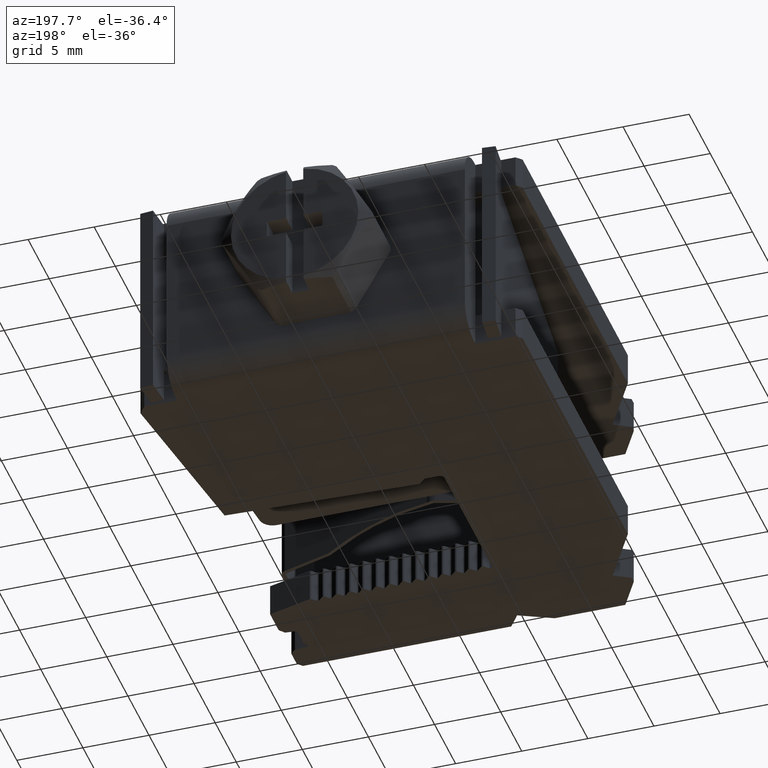
[diagram: clean part render]
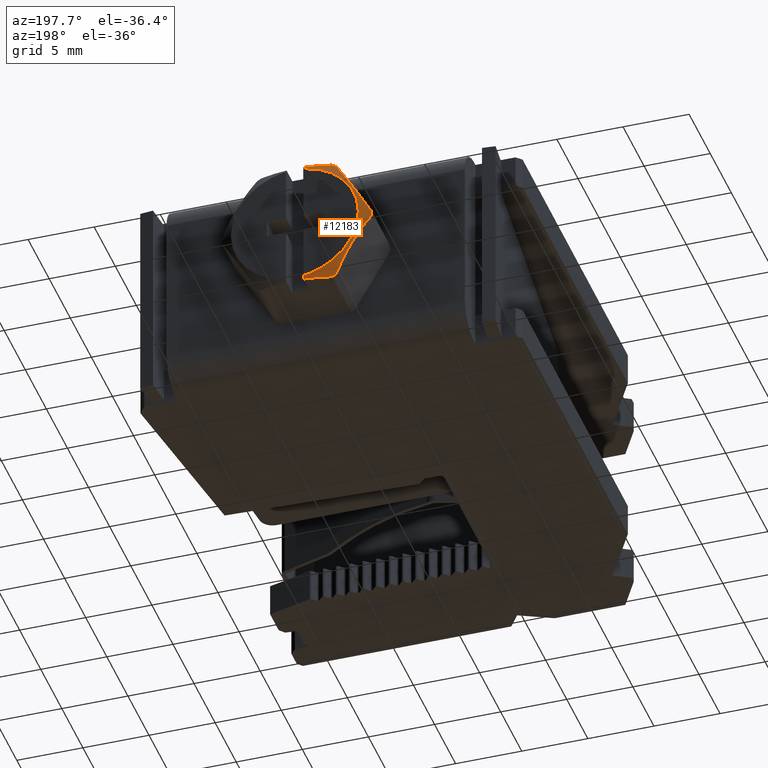
[diagram: same view with one face highlighted and labeled with its STEP entity id]
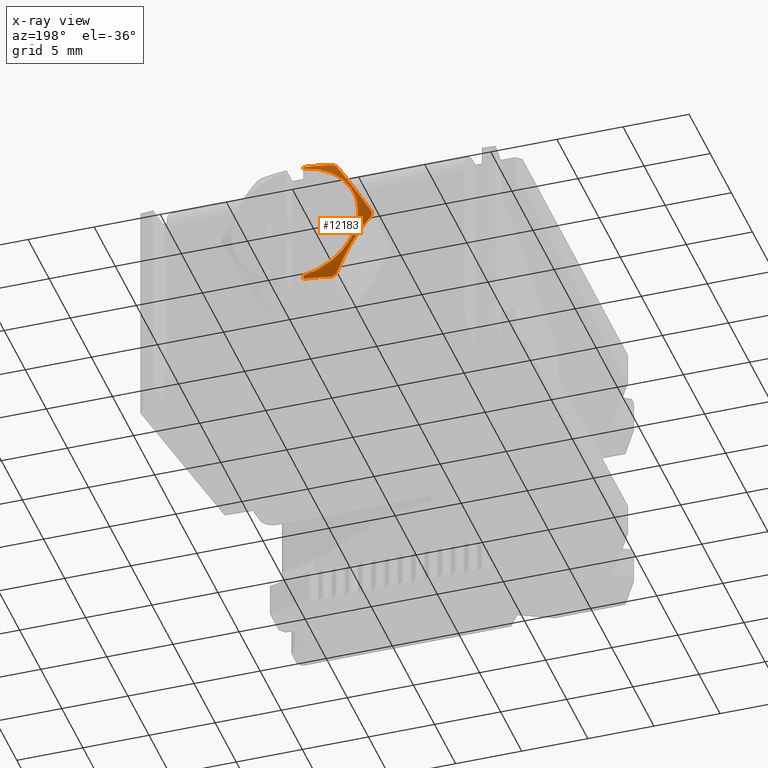
[diagram: x-ray of the same camera — body ghosted, the highlighted face saturated]
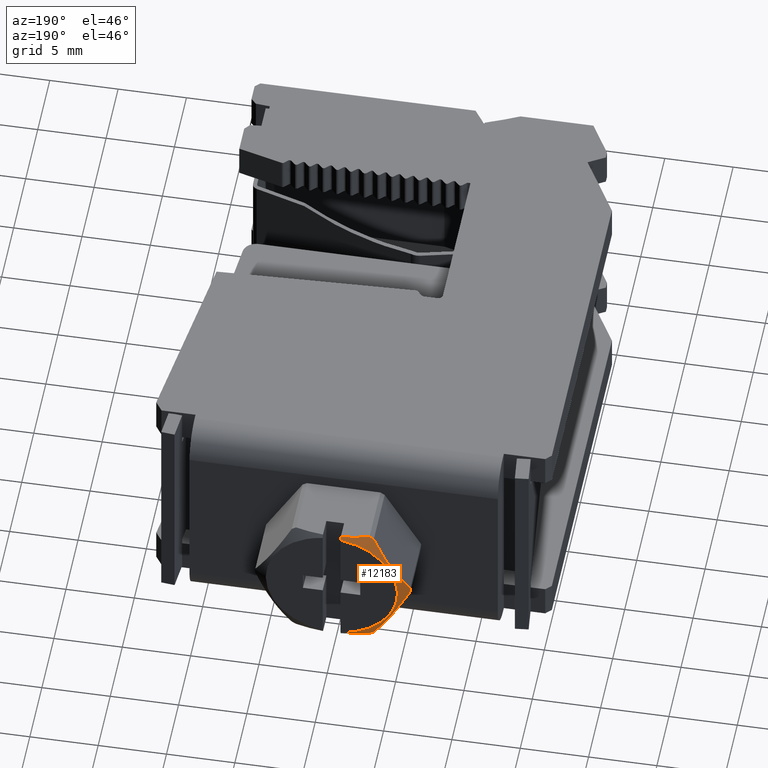
[diagram: same view with one face highlighted and labeled with its STEP entity id]
A machine part, auxiliary view. The second image highlights one B-rep face of the part: STEP entity #12183.
The next image is the same camera in x-ray: the body ghosted, the highlighted face saturated — about 0% of this face is hidden behind the body in this view.
A second angle (auxiliary view) of the same face is appended — the face is thin or edge-on in the first view.
In plain terms, the highlighted conical surface has half-angle 60 deg.
Its self-contained STEP definition (entity closure, byte-faithful):
#143 = DIRECTION ( 'NONE',  ( 0.0000000000000000000, -1.000000000000000000, 0.0000000000000000000 ) ) ;
#146 = FACE_OUTER_BOUND ( 'NONE', #9075, .T. ) ;
#162 = DIRECTION ( 'NONE',  ( 0.0000000000000000000, 0.0000000000000000000, -1.000000000000000000 ) ) ;
#178 = CARTESIAN_POINT ( 'NONE',  ( 9.746278230129222600, 39.13180984869768500, 4.000000000000000000 ) ) ;
#501 = CARTESIAN_POINT ( 'NONE',  ( 6.849237577903238600, 39.14274310909992500, 8.866697114455819300 ) ) ;
#525 = CARTESIAN_POINT ( 'NONE',  ( 6.744056830341164300, 39.14318877548951300, 8.799999999993433500 ) ) ;
#527 = CARTESIAN_POINT ( 'NONE',  ( 4.072775538232403600, 39.13678162866168000, 4.057737674253047500 ) ) ;
#529 = CARTESIAN_POINT ( 'NONE',  ( 4.072775427689189900, 39.13477120992310900, 4.173204703424361600 ) ) ;
#533 = CARTESIAN_POINT ( 'NONE',  ( 6.954243281375807100, 39.13993726534955900, 8.933267976910714800 ) ) ;
#537 = CARTESIAN_POINT ( 'NONE',  ( 7.059526537706262600, 39.13477121946350200, 8.999999907615466200 ) ) ;
#546 = CARTESIAN_POINT ( 'NONE',  ( 4.072775538232403600, 39.13678163197576500, 3.942267765201685300 ) ) ;
#557 = CARTESIAN_POINT ( 'NONE',  ( 4.072775538236292000, 39.13477123177968100, 3.826794919244444600 ) ) ;
#3228 = CARTESIAN_POINT ( 'NONE',  ( 9.096278230135011400, 39.50085342542391200, 9.000000000001106700 ) ) ;
#3229 = CARTESIAN_POINT ( 'NONE',  ( 9.096276957700665000, 39.54430357588582000, 8.924108701744348300 ) ) ;
#3234 = CARTESIAN_POINT ( 'NONE',  ( 9.096276899311421400, 39.58679690438161500, 8.849860033558790900 ) ) ;
#3240 = CARTESIAN_POINT ( 'NONE',  ( 9.096278230134878100, 39.62833341091160100, 8.777253995631609100 ) ) ;
#3271 = CARTESIAN_POINT ( 'NONE',  ( 9.096278230131250800, 39.62833341091469200, -0.7772539956258219800 ) ) ;
#3278 = CARTESIAN_POINT ( 'NONE',  ( 9.096276957697027000, 39.54430357588854900, -0.9241087017391073100 ) ) ;
#3289 = CARTESIAN_POINT ( 'NONE',  ( 9.096276899307786900, 39.58679690438701500, -0.8498600335488742900 ) ) ;
#3291 = CARTESIAN_POINT ( 'NONE',  ( 9.096278230131364500, 39.50085342542346500, -1.000000000001165500 ) ) ;
#3784 = CARTESIAN_POINT ( 'NONE',  ( 5.434768558482908000, 39.62833341091709400, 1.766571099550675400 ) ) ;
#3785 = CARTESIAN_POINT ( 'NONE',  ( 5.434768558484590200, 39.62833341091709400, 6.233428900452572900 ) ) ;
#3786 = CARTESIAN_POINT ( 'NONE',  ( 5.029602737290565200, 39.62833341091709400, 5.153383109516179100 ) ) ;
#3789 = CARTESIAN_POINT ( 'NONE',  ( 5.735227353471103100, 39.62833341091709400, 1.263434421227560600 ) ) ;
#3794 = CARTESIAN_POINT ( 'NONE',  ( 6.493930177603166600, 39.62833341091709400, 0.3945107894639369200 ) ) ;
#3795 = CARTESIAN_POINT ( 'NONE',  ( 4.925007055556249300, 39.62833341091709400, 3.423229193445335800 ) ) ;
#3798 = CARTESIAN_POINT ( 'NONE',  ( 8.524773218192409600, 39.62833341091709400, -0.6994942076648237300 ) ) ;
#3803 = CARTESIAN_POINT ( 'NONE',  ( 7.967526770562229500, 39.62833341091708700, 8.518115043593983400 ) ) ;
#3804 = CARTESIAN_POINT ( 'NONE',  ( 4.925007055556680900, 39.62833341091709400, 4.576770806558296400 ) ) ;
#3806 = CARTESIAN_POINT ( 'NONE',  ( 9.096278230131250800, 39.62833341091469200, -0.7772539956258219800 ) ) ;
#3807 = CARTESIAN_POINT ( 'NONE',  ( 9.096278230134878100, 39.62833341091160100, 8.777253995631609100 ) ) ;
#3811 = CARTESIAN_POINT ( 'NONE',  ( 8.524773218195949900, 39.62833341091708700, 8.699494207665743800 ) ) ;
#3815 = CARTESIAN_POINT ( 'NONE',  ( 5.029602737289696500, 39.62833341091709400, 2.846616890487376300 ) ) ;
#3816 = CARTESIAN_POINT ( 'NONE',  ( 5.735227353473165500, 39.62833341091709400, 6.736565578775462800 ) ) ;
#3818 = CARTESIAN_POINT ( 'NONE',  ( 6.493930177605884400, 39.62833341091709400, 7.605489210538515000 ) ) ;
#3821 = CARTESIAN_POINT ( 'NONE',  ( 7.967526770558824200, 39.62833341091709400, -0.5181150435926443800 ) ) ;
#3828 = CARTESIAN_POINT ( 'NONE',  ( 6.951965706031033100, 39.62833341091708000, 7.971037373247702000 ) ) ;
#3831 = CARTESIAN_POINT ( 'NONE',  ( 6.951965706028040900, 39.62833341091709400, 0.02896262675440540400 ) ) ;
#4133 = EDGE_CURVE ( 'NONE', #9572, #9446, #12299, .T. ) ;
#4134 = EDGE_CURVE ( 'NONE', #9503, #9504, #12294, .T. ) ;
#4251 = EDGE_CURVE ( 'NONE', #9446, #9503, #12348, .T. ) ;
#4377 = EDGE_CURVE ( 'NONE', #9584, #9612, #12355, .T. ) ;
#4398 = EDGE_CURVE ( 'NONE', #9602, #9504, #12382, .T. ) ;
#4402 = EDGE_CURVE ( 'NONE', #9602, #9582, #12387, .T. ) ;
#4414 = EDGE_CURVE ( 'NONE', #9572, #9549, #12393, .T. ) ;
#4418 = EDGE_CURVE ( 'NONE', #9658, #9582, #12397, .T. ) ;
#4637 = CARTESIAN_POINT ( 'NONE',  ( 5.133887817702078100, 39.51167031742014800, 6.011105461334392600 ) ) ;
#4643 = CARTESIAN_POINT ( 'NONE',  ( 6.508262924041401800, 39.27086914379253800, 8.391592974171983200 ) ) ;
#4644 = CARTESIAN_POINT ( 'NONE',  ( 5.438143555179614500, 39.52506082037064800, 6.538091857139821900 ) ) ;
#4645 = CARTESIAN_POINT ( 'NONE',  ( 4.742133772609517600, 39.42207676770355800, 5.332567551163448300 ) ) ;
#4647 = CARTESIAN_POINT ( 'NONE',  ( 5.782469703177073800, 39.49776644304054000, 7.134482239845900700 ) ) ;
#4650 = CARTESIAN_POINT ( 'NONE',  ( 4.072775427689189900, 39.13477120992310900, 4.173204703424361600 ) ) ;
#4653 = CARTESIAN_POINT ( 'NONE',  ( 5.425923532071613500, 39.52516459546256300, 6.516926156247098600 ) ) ;
#4656 = CARTESIAN_POINT ( 'NONE',  ( 4.304013800296496900, 39.26111994446708300, 4.573721499306620900 ) ) ;
#4659 = CARTESIAN_POINT ( 'NONE',  ( 4.785747378936652500, 39.43484440506395600, 5.408108533223351200 ) ) ;
#4661 = CARTESIAN_POINT ( 'NONE',  ( 4.835827406649587900, 39.44866058600396700, 5.494849685666613600 ) ) ;
#4662 = CARTESIAN_POINT ( 'NONE',  ( 4.524939394381446400, 39.35622327293827300, 4.956375852954090900 ) ) ;
#4663 = CARTESIAN_POINT ( 'NONE',  ( 5.301442618046222000, 39.52494747340209400, 6.301318888582504700 ) ) ;
#4665 = CARTESIAN_POINT ( 'NONE',  ( 4.764247472847051400, 39.42861878638214500, 5.370869603518199800 ) ) ;
#4666 = CARTESIAN_POINT ( 'NONE',  ( 4.749905971660700400, 39.42440072986562400, 5.346029394806631500 ) ) ;
#4667 = CARTESIAN_POINT ( 'NONE',  ( 6.744056830341164300, 39.14318877548951300, 8.799999999993433500 ) ) ;
#4672 = CARTESIAN_POINT ( 'NONE',  ( 6.164921930450930200, 39.41437338192808700, 7.796908928952104700 ) ) ;
#4675 = CARTESIAN_POINT ( 'NONE',  ( 4.935641782757584500, 39.47345189728056200, 5.667733256411450400 ) ) ;
#4676 = CARTESIAN_POINT ( 'NONE',  ( 5.464275649284104500, 39.52460604249656500, 6.583353971836969800 ) ) ;
#4678 = CARTESIAN_POINT ( 'NONE',  ( 5.595771655852233900, 39.51845583608531600, 6.811111736205388600 ) ) ;
#4680 = CARTESIAN_POINT ( 'NONE',  ( 5.503554648767841500, 39.52354874822987100, 6.651387194613272800 ) ) ;
#4741 = CARTESIAN_POINT ( 'NONE',  ( 7.059526884184058400, 39.13477123177857900, -0.9999999999960292900 ) ) ;
#4744 = CARTESIAN_POINT ( 'NONE',  ( 6.849240193257279500, 39.14274978069282400, -0.8666850991884644800 ) ) ;
#4746 = CARTESIAN_POINT ( 'NONE',  ( 7.059526884184058400, 39.13477123177857900, -0.9999999999960292900 ) ) ;
#4748 = CARTESIAN_POINT ( 'NONE',  ( 7.778510023503574000, 39.33119708046599100, -1.000000000000004400 ) ) ;
#4760 = CARTESIAN_POINT ( 'NONE',  ( 8.457427138820154500, 39.45322447834600900, -1.000000000000004400 ) ) ;
#4763 = CARTESIAN_POINT ( 'NONE',  ( 9.096278230131364500, 39.50085342542346500, -1.000000000001165500 ) ) ;
#4767 = CARTESIAN_POINT ( 'NONE',  ( 6.954244949649192300, 39.13994393377448900, -0.9332557713946450000 ) ) ;
#4773 = CARTESIAN_POINT ( 'NONE',  ( 6.744056969648540600, 39.14318877489726100, -0.8000000883315301300 ) ) ;
#4789 = CARTESIAN_POINT ( 'NONE',  ( 4.072775538236292000, 39.13477123177968100, 3.826794919244444600 ) ) ;
#4820 = CARTESIAN_POINT ( 'NONE',  ( 9.096278230135011400, 39.50085342542391200, 9.000000000001106700 ) ) ;
#4830 = CARTESIAN_POINT ( 'NONE',  ( 8.457427306673377400, 39.45322449086047800, 9.000000000000007100 ) ) ;
#4832 = CARTESIAN_POINT ( 'NONE',  ( 7.778510072658193100, 39.33119709287312600, 9.000000000000007100 ) ) ;
#4833 = CARTESIAN_POINT ( 'NONE',  ( 7.059526537706262600, 39.13477121946350200, 8.999999907615466200 ) ) ;
#4842 = CARTESIAN_POINT ( 'NONE',  ( 5.980656110056068900, 39.45273827025829400, 0.5222488340737467800 ) ) ;
#4844 = CARTESIAN_POINT ( 'NONE',  ( 5.312857059190598400, 39.52284915158973900, 1.678910719419018700 ) ) ;
#4845 = CARTESIAN_POINT ( 'NONE',  ( 6.030717751413481800, 39.43926311988083500, 0.4355395277324191600 ) ) ;
#4846 = CARTESIAN_POINT ( 'NONE',  ( 5.352071034191313400, 39.52419284456093600, 1.610990122351043000 ) ) ;
#4847 = CARTESIAN_POINT ( 'NONE',  ( 4.652154612497603200, 39.40920096760467600, 2.823280925776358700 ) ) ;
#4848 = CARTESIAN_POINT ( 'NONE',  ( 5.390317576279782600, 39.52503262421186000, 1.544745168239997300 ) ) ;
#4852 = CARTESIAN_POINT ( 'NONE',  ( 6.066543043851622100, 39.42906228267300200, 0.3734883010335486900 ) ) ;
#4856 = CARTESIAN_POINT ( 'NONE',  ( 5.514934324205203400, 39.52573882025468100, 1.328902629359162800 ) ) ;
#4858 = CARTESIAN_POINT ( 'NONE',  ( 6.291734655668453700, 39.36230234368697700, -0.01655501207153151800 ) ) ;
#4862 = CARTESIAN_POINT ( 'NONE',  ( 4.308750127572420900, 39.26370680520657400, 3.418074941213800500 ) ) ;
#4868 = CARTESIAN_POINT ( 'NONE',  ( 5.682602884471238600, 39.51367569489471500, 1.038492164146461900 ) ) ;
#4869 = CARTESIAN_POINT ( 'NONE',  ( 6.074300803520325000, 39.42679400131949300, 0.3600514671344448000 ) ) ;
#4876 = CARTESIAN_POINT ( 'NONE',  ( 5.034317729849325600, 39.49510306103358200, 2.161354989744267700 ) ) ;
#4878 = CARTESIAN_POINT ( 'NONE',  ( 6.744056969648540600, 39.14318877489726100, -0.8000000883315301300 ) ) ;
#4880 = CARTESIAN_POINT ( 'NONE',  ( 6.052208199075224100, 39.43318325730638200, 0.3983169805048833400 ) ) ;
#4886 = CARTESIAN_POINT ( 'NONE',  ( 5.880863773421197000, 39.47684378849484700, 0.6950942313313662700 ) ) ;
#4888 = CARTESIAN_POINT ( 'NONE',  ( 5.220780426426604700, 39.51709383373918200, 1.838392125556121100 ) ) ;
#4889 = CARTESIAN_POINT ( 'NONE',  ( 6.512790363072860500, 39.26841869929596400, -0.3994347285990559900 ) ) ;
#4895 = CARTESIAN_POINT ( 'NONE',  ( 5.378158697738237800, 39.52483911280354800, 1.565804963637010200 ) ) ;
#8594 = CARTESIAN_POINT ( 'NONE',  ( 9.096278230134878100, 39.62833341091160100, 8.777253995631609100 ) ) ;
#8618 = CARTESIAN_POINT ( 'NONE',  ( 7.059526537706262600, 39.13477121946350200, 8.999999907615466200 ) ) ;
#8624 = CARTESIAN_POINT ( 'NONE',  ( 9.096278230131364500, 39.50085342542346500, -1.000000000001165500 ) ) ;
#8630 = CARTESIAN_POINT ( 'NONE',  ( 9.096278230131250800, 39.62833341091469200, -0.7772539956258219800 ) ) ;
#8663 = CARTESIAN_POINT ( 'NONE',  ( 9.096278230135011400, 39.50085342542391200, 9.000000000001106700 ) ) ;
#8680 = CARTESIAN_POINT ( 'NONE',  ( 7.059526884184058400, 39.13477123177857900, -0.9999999999960292900 ) ) ;
#8694 = CARTESIAN_POINT ( 'NONE',  ( 6.744056830341164300, 39.14318877548951300, 8.799999999993433500 ) ) ;
#8708 = CARTESIAN_POINT ( 'NONE',  ( 4.072775427689189900, 39.13477120992310900, 4.173204703424361600 ) ) ;
#8713 = CARTESIAN_POINT ( 'NONE',  ( 6.744056969648540600, 39.14318877489726100, -0.8000000883315301300 ) ) ;
#8725 = CARTESIAN_POINT ( 'NONE',  ( 4.072775538236292000, 39.13477123177968100, 3.826794919244444600 ) ) ;
#9075 = EDGE_LOOP ( 'NONE', ( #9811, #9844, #9805, #9853, #9856, #9814, #9806, #11361, #9865, #9823 ) ) ;
#9446 = VERTEX_POINT ( 'NONE', #8594 ) ;
#9503 = VERTEX_POINT ( 'NONE', #8630 ) ;
#9504 = VERTEX_POINT ( 'NONE', #8624 ) ;
#9549 = VERTEX_POINT ( 'NONE', #8618 ) ;
#9572 = VERTEX_POINT ( 'NONE', #8663 ) ;
#9582 = VERTEX_POINT ( 'NONE', #8713 ) ;
#9584 = VERTEX_POINT ( 'NONE', #8694 ) ;
#9602 = VERTEX_POINT ( 'NONE', #8680 ) ;
#9612 = VERTEX_POINT ( 'NONE', #8708 ) ;
#9658 = VERTEX_POINT ( 'NONE', #8725 ) ;
#9805 = ORIENTED_EDGE ( 'NONE', *, *, #4414, .F. ) ;
#9806 = ORIENTED_EDGE ( 'NONE', *, *, #4398, .F. ) ;
#9811 = ORIENTED_EDGE ( 'NONE', *, *, #4377, .F. ) ;
#9814 = ORIENTED_EDGE ( 'NONE', *, *, #4134, .T. ) ;
#9823 = ORIENTED_EDGE ( 'NONE', *, *, #12280, .F. ) ;
#9844 = ORIENTED_EDGE ( 'NONE', *, *, #12272, .T. ) ;
#9853 = ORIENTED_EDGE ( 'NONE', *, *, #4133, .T. ) ;
#9856 = ORIENTED_EDGE ( 'NONE', *, *, #4251, .T. ) ;
#9865 = ORIENTED_EDGE ( 'NONE', *, *, #4418, .F. ) ;
#11361 = ORIENTED_EDGE ( 'NONE', *, *, #4402, .T. ) ;
#12183 = ADVANCED_FACE ( 'NONE', ( #146 ), #12727, .T. ) ;
#12272 = EDGE_CURVE ( 'NONE', #9584, #9549, #12623, .T. ) ;
#12280 = EDGE_CURVE ( 'NONE', #9612, #9658, #12626, .T. ) ;
#12294 = B_SPLINE_CURVE_WITH_KNOTS ( 'NONE', 3,
 ( #3271, #3289, #3278, #3291 ),
 .UNSPECIFIED., .F., .F.,
 ( 4, 4 ),
 ( 0.0000000000000000000, 1.000000000000000000 ),
 .UNSPECIFIED. ) ;
#12299 = B_SPLINE_CURVE_WITH_KNOTS ( 'NONE', 3,
 ( #3228, #3229, #3234, #3240 ),
 .UNSPECIFIED., .F., .F.,
 ( 4, 4 ),
 ( 0.0000000000000000000, 1.000000000000000000 ),
 .UNSPECIFIED. ) ;
#12348 = B_SPLINE_CURVE_WITH_KNOTS ( 'NONE', 3,
 ( #3807, #3811, #3803, #3828, #3818, #3816, #3785, #3786, #3804, #3795, #3815, #3784, #3789, #3794, #3831, #3821, #3798, #3806 ),
 .UNSPECIFIED., .F., .F.,
 ( 4, 2, 2, 2, 2, 2, 2, 2, 4 ),
 ( 0.0000000000000000000, 0.1250000000000000000, 0.2500000000000000000, 0.3750000000000000000, 0.5000000000000000000, 0.6250000000000000000, 0.7500000000000000000, 0.8750000000000000000, 1.000000000000000000 ),
 .UNSPECIFIED. ) ;
#12355 = B_SPLINE_CURVE_WITH_KNOTS ( 'NONE', 3,
 ( #4667, #4643, #4672, #4647, #4678, #4680, #4676, #4644, #4653, #4663, #4637, #4675, #4661, #4659, #4665, #4666, #4645, #4662, #4656, #4650 ),
 .UNSPECIFIED., .F., .F.,
 ( 4, 1, 1, 1, 1, 2, 2, 1, 1, 1, 1, 2, 2, 4 ),
 ( 0.0000000000000000000, 0.2500000000000013900, 0.3750000000000016100, 0.4375000000000020000, 0.4687500000000022800, 0.4843750000000021600, 0.5000000000000021100, 0.6250000000000003300, 0.6874999999999993300, 0.7187499999999987800, 0.7343749999999986700, 0.7421874999999986700, 0.7499999999999986700, 1.000000000000000000 ),
 .UNSPECIFIED. ) ;
#12382 = B_SPLINE_CURVE_WITH_KNOTS ( 'NONE', 3,
 ( #4741, #4748, #4760, #4763 ),
 .UNSPECIFIED., .F., .F.,
 ( 4, 4 ),
 ( 0.0000000000000000000, 1.000000000000000000 ),
 .UNSPECIFIED. ) ;
#12387 = B_SPLINE_CURVE_WITH_KNOTS ( 'NONE', 3,
 ( #4746, #4767, #4744, #4773 ),
 .UNSPECIFIED., .F., .F.,
 ( 4, 4 ),
 ( 0.0000000000000000000, 1.000000000000000000 ),
 .UNSPECIFIED. ) ;
#12393 = B_SPLINE_CURVE_WITH_KNOTS ( 'NONE', 3,
 ( #4820, #4830, #4832, #4833 ),
 .UNSPECIFIED., .F., .F.,
 ( 4, 4 ),
 ( 0.0000000000000000000, 1.000000000000000000 ),
 .UNSPECIFIED. ) ;
#12397 = B_SPLINE_CURVE_WITH_KNOTS ( 'NONE', 3,
 ( #4789, #4862, #4847, #4876, #4888, #4844, #4846, #4895, #4848, #4856, #4868, #4886, #4842, #4845, #4880, #4852, #4869, #4858, #4889, #4878 ),
 .UNSPECIFIED., .F., .F.,
 ( 4, 1, 1, 1, 1, 2, 2, 1, 1, 1, 1, 2, 2, 4 ),
 ( 0.0000000000000000000, 0.2500000000000048800, 0.3750000000000073800, 0.4375000000000086600, 0.4687500000000093800, 0.4843750000000097700, 0.5000000000000101000, 0.6250000000000122100, 0.6875000000000131000, 0.7187500000000137700, 0.7343750000000138800, 0.7421875000000136600, 0.7500000000000133200, 1.000000000000000000 ),
 .UNSPECIFIED. ) ;
#12623 = B_SPLINE_CURVE_WITH_KNOTS ( 'NONE', 3,
 ( #525, #501, #533, #537 ),
 .UNSPECIFIED., .F., .F.,
 ( 4, 4 ),
 ( 0.0000000000000000000, 1.000000000000000000 ),
 .UNSPECIFIED. ) ;
#12626 = B_SPLINE_CURVE_WITH_KNOTS ( 'NONE', 3,
 ( #529, #527, #546, #557 ),
 .UNSPECIFIED., .F., .F.,
 ( 4, 4 ),
 ( 0.0000000000000000000, 1.000000000000000000 ),
 .UNSPECIFIED. ) ;
#12727 = CONICAL_SURFACE ( 'NONE', #12756, 5.681275211467436700, 1.047197551184300800 ) ;
#12756 = AXIS2_PLACEMENT_3D ( 'NONE', #178, #143, #162 ) ;